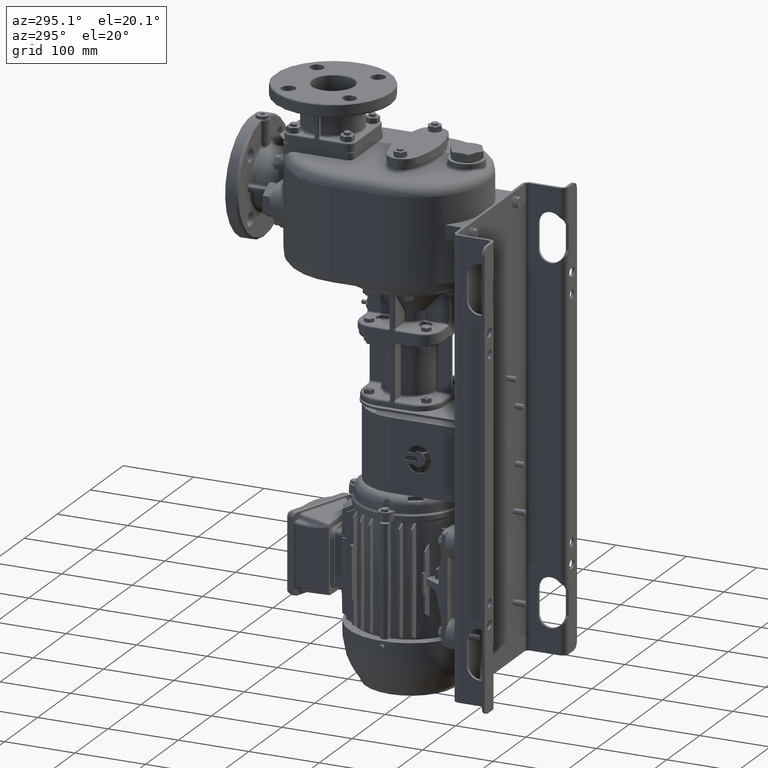
[diagram: clean part render]
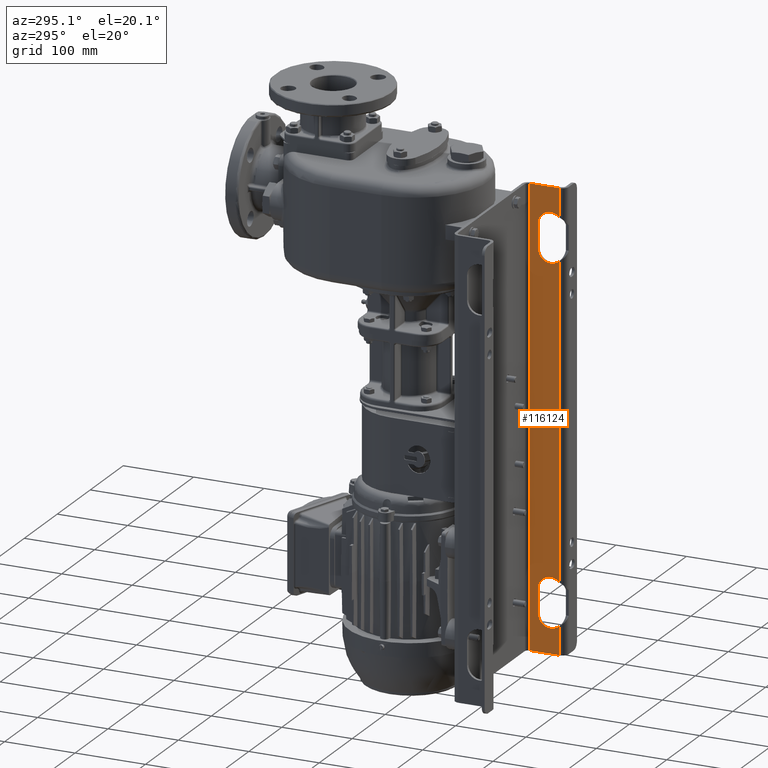
[diagram: same view with one face highlighted and labeled with its STEP entity id]
A machine part, auxiliary view. The second image highlights one B-rep face of the part: STEP entity #116124.
In plain terms, the highlighted planar face has unit normal (1, 0, 0).
Its self-contained STEP definition (entity closure, byte-faithful):
#29388=DIRECTION('',(0.E0,0.E0,-1.E0));
#29389=VECTOR('',#29388,3.5E1);
#29390=CARTESIAN_POINT('',(1.06E2,-2.1E1,-3.8E1));
#29391=LINE('',#29390,#29389);
#29392=CARTESIAN_POINT('',(1.06E2,-3.85E1,-7.3E1));
#29393=DIRECTION('',(1.E0,0.E0,0.E0));
#29394=DIRECTION('',(0.E0,-7.142857142857E-1,-6.998542122238E-1));
#29395=AXIS2_PLACEMENT_3D('',#29392,#29393,#29394);
#29397=CARTESIAN_POINT('',(1.06E2,-3.85E1,-5.38E2));
#29398=DIRECTION('',(1.E0,0.E0,0.E0));
#29399=DIRECTION('',(0.E0,1.E0,0.E0));
#29400=AXIS2_PLACEMENT_3D('',#29397,#29398,#29399);
#29402=DIRECTION('',(0.E0,0.E0,-1.E0));
#29403=VECTOR('',#29402,3.5E1);
#29404=CARTESIAN_POINT('',(1.06E2,-2.1E1,-5.38E2));
#29405=LINE('',#29404,#29403);
#29406=CARTESIAN_POINT('',(1.06E2,-3.85E1,-5.73E2));
#29407=DIRECTION('',(1.E0,0.E0,0.E0));
#29408=DIRECTION('',(0.E0,-7.142857142857E-1,-6.998542122238E-1));
#29409=AXIS2_PLACEMENT_3D('',#29406,#29407,#29408);
#29411=DIRECTION('',(0.E0,0.E0,-1.E0));
#29412=VECTOR('',#29411,6.4E2);
#29413=CARTESIAN_POINT('',(1.06E2,-9.E0,1.45E1));
#29414=LINE('',#29413,#29412);
#29415=CARTESIAN_POINT('',(1.06E2,-3.85E1,-3.8E1));
#29416=DIRECTION('',(1.E0,0.E0,0.E0));
#29417=DIRECTION('',(0.E0,1.E0,0.E0));
#29418=AXIS2_PLACEMENT_3D('',#29415,#29416,#29417);
#29881=DIRECTION('',(0.E0,0.E0,-1.E0));
#29882=VECTOR('',#29881,4.405051025722E2);
#29883=CARTESIAN_POINT('',(1.06E2,-5.1E1,-8.524744871392E1));
#29884=LINE('',#29883,#29882);
#29966=DIRECTION('',(0.E0,-1.E0,0.E0));
#29967=VECTOR('',#29966,4.2E1);
#29968=CARTESIAN_POINT('',(1.06E2,-9.E0,-6.255E2));
#29969=LINE('',#29968,#29967);
#30015=DIRECTION('',(0.E0,0.E0,-1.E0));
#30016=VECTOR('',#30015,4.025255128608E1);
#30017=CARTESIAN_POINT('',(1.06E2,-5.1E1,-5.852474487139E2));
#30018=LINE('',#30017,#30016);
#30122=DIRECTION('',(0.E0,0.E0,-1.E0));
#30123=VECTOR('',#30122,4.025255128608E1);
#30124=CARTESIAN_POINT('',(1.06E2,-5.1E1,1.45E1));
#30125=LINE('',#30124,#30123);
#30134=DIRECTION('',(0.E0,-1.E0,0.E0));
#30135=VECTOR('',#30134,4.2E1);
#30136=CARTESIAN_POINT('',(1.06E2,-9.E0,1.45E1));
#30137=LINE('',#30136,#30135);
#87588=CARTESIAN_POINT('',(1.06E2,-9.E0,1.45E1));
#87589=VERTEX_POINT('',#87588);
#87590=CARTESIAN_POINT('',(1.06E2,-5.1E1,1.45E1));
#87591=VERTEX_POINT('',#87590);
#87604=CARTESIAN_POINT('',(1.06E2,-9.E0,-6.255E2));
#87605=VERTEX_POINT('',#87604);
#87606=CARTESIAN_POINT('',(1.06E2,-5.1E1,-6.255E2));
#87607=VERTEX_POINT('',#87606);
#87664=CARTESIAN_POINT('',(1.06E2,-2.1E1,-3.8E1));
#87665=CARTESIAN_POINT('',(1.06E2,-2.1E1,-7.3E1));
#87666=VERTEX_POINT('',#87664);
#87667=VERTEX_POINT('',#87665);
#87668=CARTESIAN_POINT('',(1.06E2,-5.1E1,-8.524744871392E1));
#87669=VERTEX_POINT('',#87668);
#87670=CARTESIAN_POINT('',(1.06E2,-5.1E1,-2.575255128608E1));
#87671=VERTEX_POINT('',#87670);
#87672=CARTESIAN_POINT('',(1.06E2,-5.1E1,-5.852474487139E2));
#87673=CARTESIAN_POINT('',(1.06E2,-2.1E1,-5.73E2));
#87674=VERTEX_POINT('',#87672);
#87675=VERTEX_POINT('',#87673);
#87676=CARTESIAN_POINT('',(1.06E2,-2.1E1,-5.38E2));
#87677=CARTESIAN_POINT('',(1.06E2,-5.1E1,-5.257525512861E2));
#87678=VERTEX_POINT('',#87676);
#87679=VERTEX_POINT('',#87677);
#116094=CARTESIAN_POINT('',(1.06E2,-9.E0,1.45E1));
#116095=DIRECTION('',(1.E0,0.E0,0.E0));
#116096=DIRECTION('',(0.E0,-1.E0,0.E0));
#116097=AXIS2_PLACEMENT_3D('',#116094,#116095,#116096);
#116098=PLANE('',#116097);
#116100=ORIENTED_EDGE('',*,*,#116099,.T.);
#116102=ORIENTED_EDGE('',*,*,#116101,.F.);
#116104=ORIENTED_EDGE('',*,*,#116103,.T.);
#116106=ORIENTED_EDGE('',*,*,#116105,.F.);
#116108=ORIENTED_EDGE('',*,*,#116107,.T.);
#116110=ORIENTED_EDGE('',*,*,#116109,.F.);
#116112=ORIENTED_EDGE('',*,*,#116111,.T.);
#116114=ORIENTED_EDGE('',*,*,#116113,.F.);
#116115=ORIENTED_EDGE('',*,*,#116087,.F.);
#116117=ORIENTED_EDGE('',*,*,#116116,.T.);
#116119=ORIENTED_EDGE('',*,*,#116118,.T.);
#116121=ORIENTED_EDGE('',*,*,#116120,.F.);
#116122=EDGE_LOOP('',(#116100,#116102,#116104,#116106,#116108,#116110,#116112,
#116114,#116115,#116117,#116119,#116121));
#116123=FACE_OUTER_BOUND('',#116122,.F.);
#116124=ADVANCED_FACE('',(#116123),#116098,.F.);
#29396=CIRCLE('',#29395,1.75E1);
#29401=CIRCLE('',#29400,1.75E1);
#29410=CIRCLE('',#29409,1.75E1);
#29419=CIRCLE('',#29418,1.75E1);
#116087=EDGE_CURVE('',#87589,#87605,#29414,.T.);
#116099=EDGE_CURVE('',#87666,#87667,#29391,.T.);
#116101=EDGE_CURVE('',#87669,#87667,#29396,.T.);
#116103=EDGE_CURVE('',#87669,#87679,#29884,.T.);
#116105=EDGE_CURVE('',#87678,#87679,#29401,.T.);
#116107=EDGE_CURVE('',#87678,#87675,#29405,.T.);
#116109=EDGE_CURVE('',#87674,#87675,#29410,.T.);
#116111=EDGE_CURVE('',#87674,#87607,#30018,.T.);
#116113=EDGE_CURVE('',#87605,#87607,#29969,.T.);
#116116=EDGE_CURVE('',#87589,#87591,#30137,.T.);
#116118=EDGE_CURVE('',#87591,#87671,#30125,.T.);
#116120=EDGE_CURVE('',#87666,#87671,#29419,.T.);